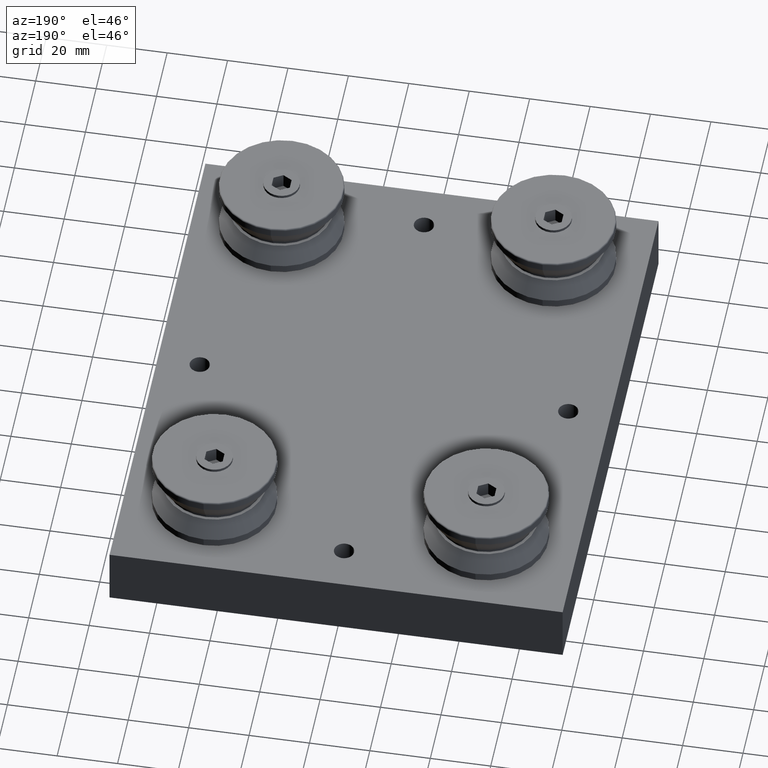
[diagram: clean part render]
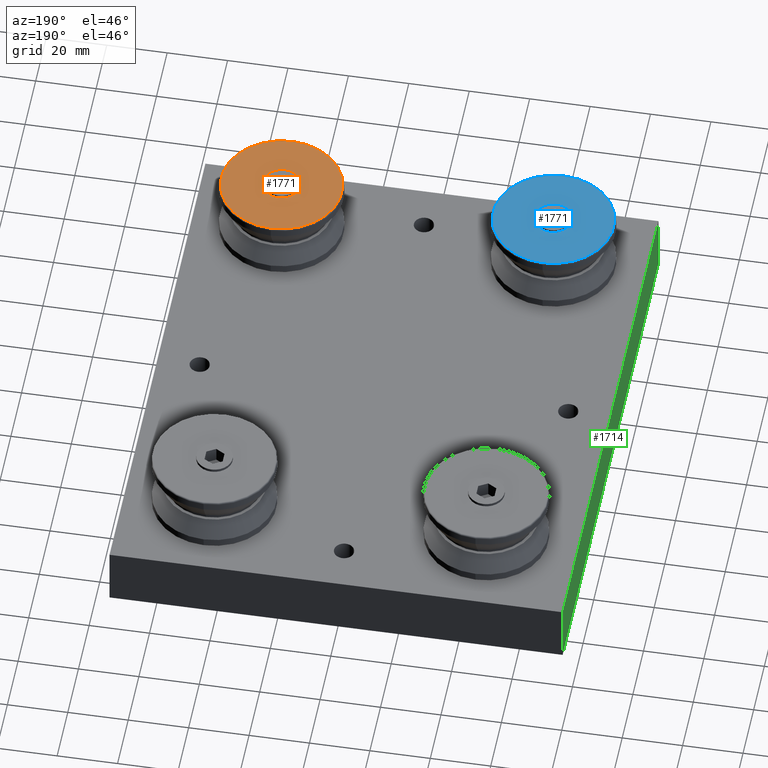
[diagram: same view with three faces highlighted in distinct colors, each labeled with its STEP entity id]
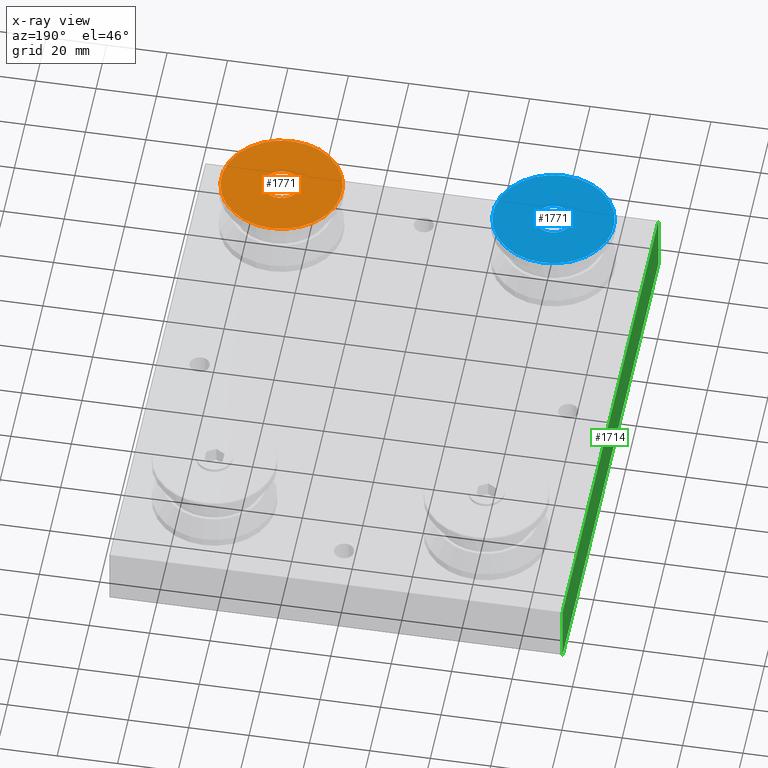
[diagram: x-ray of the same camera — body ghosted, the three highlighted faces saturated]
A machine part, auxiliary view with three faces highlighted in distinct colors.
The next image is the same camera in x-ray (body ghosted, the three faces saturated) — at least one of them is partly hidden behind the body in this view.
Their STEP definitions:

[orange] entity #1771 — the highlighted planar face has unit normal (0, -0, -1).
#210=FACE_BOUND('',#489,.T.);
#256=PLANE('',#2135);
#351=FACE_OUTER_BOUND('',#488,.T.);
#488=EDGE_LOOP('',(#1546));
#489=EDGE_LOOP('',(#1547));
#832=CIRCLE('',#2108,20.);
#837=CIRCLE('',#2120,6.);
#953=VERTEX_POINT('',#3027);
#967=VERTEX_POINT('',#3067);
#1143=EDGE_CURVE('',#953,#953,#832,.F.);
#1161=EDGE_CURVE('',#967,#967,#837,.T.);
#1546=ORIENTED_EDGE('',*,*,#1143,.T.);
#1547=ORIENTED_EDGE('',*,*,#1161,.F.);
#1771=ADVANCED_FACE('',(#351,#210),#256,.F.);
#2108=AXIS2_PLACEMENT_3D('',#3029,#2516,#2517);
#2120=AXIS2_PLACEMENT_3D('',#3068,#2553,#2554);
#2135=AXIS2_PLACEMENT_3D('',#3095,#2589,#2590);
#2516=DIRECTION('center_axis',(0.,0.,1.));
#2517=DIRECTION('ref_axis',(1.,0.,0.));
#2553=DIRECTION('center_axis',(0.,0.,-1.));
#2554=DIRECTION('ref_axis',(-1.,0.,0.));
#2589=DIRECTION('center_axis',(0.,0.,1.));
#2590=DIRECTION('ref_axis',(1.,0.,0.));
#3027=CARTESIAN_POINT('',(-20.,-2.44929359829471E-15,1.));
#3029=CARTESIAN_POINT('Origin',(0.,0.,1.));
#3067=CARTESIAN_POINT('',(6.,7.34788079488412E-16,1.));
#3068=CARTESIAN_POINT('Origin',(0.,0.,1.));
#3095=CARTESIAN_POINT('Origin',(-20.5,0.,1.));

[blue] entity #1771 — the highlighted planar face has unit normal (-0, 0, -1).
#210=FACE_BOUND('',#489,.T.);
#256=PLANE('',#2135);
#351=FACE_OUTER_BOUND('',#488,.T.);
#488=EDGE_LOOP('',(#1546));
#489=EDGE_LOOP('',(#1547));
#832=CIRCLE('',#2108,20.);
#837=CIRCLE('',#2120,6.);
#953=VERTEX_POINT('',#3027);
#967=VERTEX_POINT('',#3067);
#1143=EDGE_CURVE('',#953,#953,#832,.F.);
#1161=EDGE_CURVE('',#967,#967,#837,.T.);
#1546=ORIENTED_EDGE('',*,*,#1143,.T.);
#1547=ORIENTED_EDGE('',*,*,#1161,.F.);
#1771=ADVANCED_FACE('',(#351,#210),#256,.F.);
#2108=AXIS2_PLACEMENT_3D('',#3029,#2516,#2517);
#2120=AXIS2_PLACEMENT_3D('',#3068,#2553,#2554);
#2135=AXIS2_PLACEMENT_3D('',#3095,#2589,#2590);
#2516=DIRECTION('center_axis',(0.,0.,1.));
#2517=DIRECTION('ref_axis',(1.,0.,0.));
#2553=DIRECTION('center_axis',(0.,0.,-1.));
#2554=DIRECTION('ref_axis',(-1.,0.,0.));
#2589=DIRECTION('center_axis',(0.,0.,1.));
#2590=DIRECTION('ref_axis',(1.,0.,0.));
#3027=CARTESIAN_POINT('',(-20.,-2.44929359829471E-15,1.));
#3029=CARTESIAN_POINT('Origin',(0.,0.,1.));
#3067=CARTESIAN_POINT('',(6.,7.34788079488412E-16,1.));
#3068=CARTESIAN_POINT('Origin',(0.,0.,1.));
#3095=CARTESIAN_POINT('Origin',(-20.5,0.,1.));

[green] entity #1714 — the highlighted planar face has unit normal (-1, 0, 0).
#221=PLANE('',#2034);
#294=FACE_OUTER_BOUND('',#410,.T.);
#410=EDGE_LOOP('',(#1302,#1303,#1304,#1305));
#535=LINE('',#2816,#664);
#540=LINE('',#2826,#669);
#541=LINE('',#2829,#670);
#542=LINE('',#2830,#671);
#664=VECTOR('',#2294,10.);
#669=VECTOR('',#2303,10.);
#670=VECTOR('',#2306,10.);
#671=VECTOR('',#2307,10.);
#883=VERTEX_POINT('',#2809);
#886=VERTEX_POINT('',#2814);
#889=VERTEX_POINT('',#2824);
#890=VERTEX_POINT('',#2828);
#1043=EDGE_CURVE('',#886,#883,#535,.T.);
#1048=EDGE_CURVE('',#889,#886,#540,.T.);
#1049=EDGE_CURVE('',#890,#889,#541,.T.);
#1050=EDGE_CURVE('',#883,#890,#542,.T.);
#1302=ORIENTED_EDGE('',*,*,#1048,.F.);
#1303=ORIENTED_EDGE('',*,*,#1049,.F.);
#1304=ORIENTED_EDGE('',*,*,#1050,.F.);
#1305=ORIENTED_EDGE('',*,*,#1043,.F.);
#1714=ADVANCED_FACE('',(#294),#221,.T.);
#2034=AXIS2_PLACEMENT_3D('',#2827,#2304,#2305);
#2294=DIRECTION('',(9.86864910777917E-17,-1.,0.));
#2303=DIRECTION('',(0.,0.,-1.));
#2304=DIRECTION('center_axis',(1.,9.86864910777917E-17,0.));
#2305=DIRECTION('ref_axis',(-9.86864910777917E-17,1.,0.));
#2306=DIRECTION('',(-9.86864910777917E-17,1.,0.));
#2307=DIRECTION('',(0.,0.,1.));
#2809=CARTESIAN_POINT('',(75.,-90.,-10.));
#2814=CARTESIAN_POINT('',(75.,90.,-10.));
#2816=CARTESIAN_POINT('',(75.,90.,-10.));
#2824=CARTESIAN_POINT('',(75.,90.,10.));
#2826=CARTESIAN_POINT('',(75.,90.,0.));
#2827=CARTESIAN_POINT('Origin',(75.,-90.,0.));
#2828=CARTESIAN_POINT('',(75.,-90.,10.));
#2829=CARTESIAN_POINT('',(75.,90.,10.));
#2830=CARTESIAN_POINT('',(75.,-90.,0.));